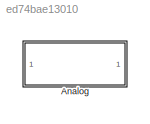
MODEL slx_ed74bae13010
KIND library
CONFIG AbsTol = auto
CONFIG EnableMultiTasking = off
CONFIG FixedStep = auto
CONFIG MaxStep = auto
CONFIG MinStep = auto
CONFIG RelTol = 1e-3
CONFIG SampleTimeConstraint = Unconstrained
CONFIG Solver = VariableStepAuto
CONFIG SolverName = VariableStepAuto
CONFIG StartTime = 0.0
CONFIG StopTime = 10.0
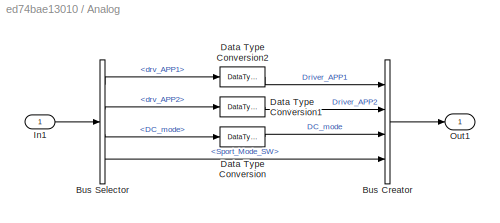
BLOCK [SubSystem] Analog
  Ports = [1, 1]
  RequestExecContextInheritance = off
  Variant = off
BLOCK [BusCreator] Analog/Bus Creator
  DisplayOption = bar
  InheritFromInputs = on
  Inputs = 4
  Ports = [4, 1]
BLOCK [BusSelector] Analog/Bus Selector
  OutputAsBus = off
  OutputSignals = Driver_Signals.drv_APP1,Driver_Signals.drv_APP2,DC_mode,Driver_Signals.Sport_Mode_SW
  Ports = [1, 4]
BLOCK [DataTypeConversion] Analog/Data Type Conversion
  RndMeth = Floor
  SaturateOnIntegerOverflow = off
BLOCK [DataTypeConversion] Analog/Data Type Conversion1
  RndMeth = Floor
  SaturateOnIntegerOverflow = off
BLOCK [DataTypeConversion] Analog/Data Type Conversion2
  RndMeth = Floor
  SaturateOnIntegerOverflow = off
BLOCK [Inport] Analog/In1
  IconDisplay = Port number
BLOCK [Outport] Analog/Out1
  IconDisplay = Port number
LINE Analog/Bus Creator:1 -> Analog/Out1:1
LINE Analog/Bus Selector:1 -> Analog/Data Type Conversion2:1
LINE Analog/Bus Selector:2 -> Analog/Data Type Conversion1:1
LINE Analog/Bus Selector:3 -> Analog/Data Type Conversion:1
LINE Analog/Bus Selector:4 -> Analog/Bus Creator:4
LINE Analog/Data Type Conversion1:1 -> Analog/Bus Creator:2
LINE Analog/Data Type Conversion2:1 -> Analog/Bus Creator:1
LINE Analog/Data Type Conversion:1 -> Analog/Bus Creator:3
LINE Analog/In1:1 -> Analog/Bus Selector:1
